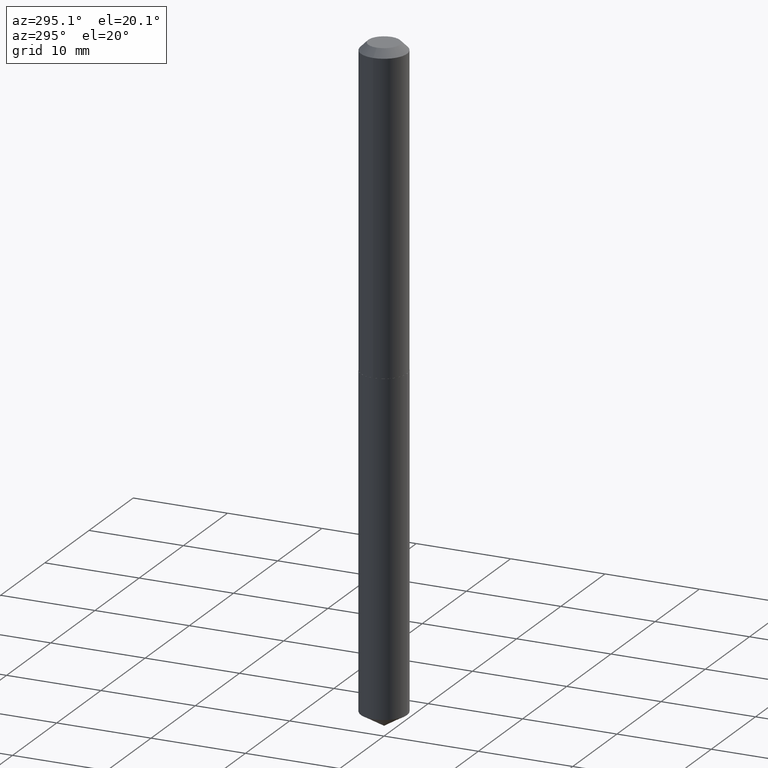
[diagram: clean part render]
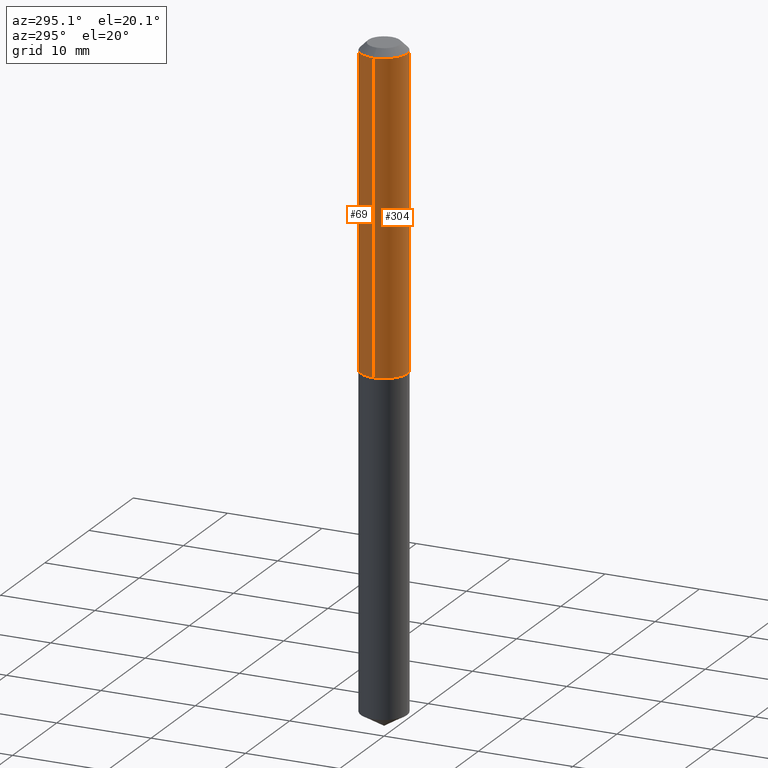
[diagram: same view with one multi-face feature highlighted, each face labeled with its STEP entity id]
A machine part, auxiliary view. The highlighted faces form ONE feature: a constant-radius fillet chain: 2 tangent blend faces with common blend radius 2.4575 mm. The faces share edges in the B-rep.
Their STEP definitions:
[1] entity #304 (Cylinder):
#17 = CARTESIAN_POINT ( 'NONE',  ( -0.09675000000000016920, -3.914322307747367897E-15, -1.318000000000000060 ) ) ;
#28 = DIRECTION ( 'NONE',  ( -2.445468806185136597E-29, 3.491481338843145583E-15, 1.000000000000000000 ) ) ;
#30 = ORIENTED_EDGE ( 'NONE', *, *, #70, .T. ) ;
#32 = VERTEX_POINT ( 'NONE', #39 ) ;
#34 = EDGE_LOOP ( 'NONE', ( #344, #335, #30, #274 ) ) ;
#36 = VECTOR ( 'NONE', #255, 39.37007874015748143 ) ;
#39 = CARTESIAN_POINT ( 'NONE',  ( -0.09675000000000000266, -1.667990501369159630E-15, -0.03125000000000019429 ) ) ;
#67 = CIRCLE ( 'NONE', #231, 0.09675000000000016920 ) ;
#70 = EDGE_CURVE ( 'NONE', #305, #179, #163, .T. ) ;
#87 = CARTESIAN_POINT ( 'NONE',  ( 0.09675000000000008593, -6.756016390661468288E-16, 4.717701030582572027E-30 ) ) ;
#105 = CARTESIAN_POINT ( 'NONE',  ( 0.000000000000000000, 0.000000000000000000, 0.000000000000000000 ) ) ;
#109 = CARTESIAN_POINT ( 'NONE',  ( 0.09675000000000016920, -5.277374043661413548E-15, -1.318000000000000060 ) ) ;
#135 = DIRECTION ( 'NONE',  ( -2.445468806185136597E-29, 3.491481338843145583E-15, 1.000000000000000000 ) ) ;
#146 = DIRECTION ( 'NONE',  ( 1.000000000000000000, -6.982962677686265922E-15, 0.000000000000000000 ) ) ;
#160 = VERTEX_POINT ( 'NONE', #17 ) ;
#163 = LINE ( 'NONE', #87, #36 ) ;
#170 = CIRCLE ( 'NONE', #336, 0.09675000000000000266 ) ;
#179 = VERTEX_POINT ( 'NONE', #239 ) ;
#184 = DIRECTION ( 'NONE',  ( -2.445468806185136597E-29, 3.491481338843145583E-15, 1.000000000000000000 ) ) ;
#195 = CARTESIAN_POINT ( 'NONE',  ( -0.09675000000000008593, 6.874500968478975404E-16, -4.759069699821625440E-30 ) ) ;
#204 = EDGE_CURVE ( 'NONE', #32, #179, #170, .T. ) ;
#222 = DIRECTION ( 'NONE',  ( -2.445468806185136877E-29, 3.491481338843145188E-15, 1.000000000000000000 ) ) ;
#230 = FACE_OUTER_BOUND ( 'NONE', #34, .T. ) ;
#231 = AXIS2_PLACEMENT_3D ( 'NONE', #366, #184, #334 ) ;
#239 = CARTESIAN_POINT ( 'NONE',  ( 0.09675000000000000266, -7.847104309049952392E-16, -0.03125000000000019429 ) ) ;
#250 = CYLINDRICAL_SURFACE ( 'NONE', #378, 0.09675000000000008593 ) ;
#255 = DIRECTION ( 'NONE',  ( -2.445468806185136877E-29, 3.491481338843145188E-15, 1.000000000000000000 ) ) ;
#256 = DIRECTION ( 'NONE',  ( 1.000000000000000000, -6.982962677686265922E-15, 4.876176775795935793E-29 ) ) ;
#274 = ORIENTED_EDGE ( 'NONE', *, *, #204, .F. ) ;
#291 = EDGE_CURVE ( 'NONE', #160, #32, #345, .T. ) ;
#304 = ADVANCED_FACE ( 'NONE', ( #230 ), #250, .T. ) ;
#305 = VERTEX_POINT ( 'NONE', #109 ) ;
#320 = VECTOR ( 'NONE', #222, 39.37007874015748143 ) ;
#334 = DIRECTION ( 'NONE',  ( 1.000000000000000000, -6.982962677686262766E-15, 0.000000000000000000 ) ) ;
#335 = ORIENTED_EDGE ( 'NONE', *, *, #364, .T. ) ;
#336 = AXIS2_PLACEMENT_3D ( 'NONE', #362, #28, #146 ) ;
#344 = ORIENTED_EDGE ( 'NONE', *, *, #291, .F. ) ;
#345 = LINE ( 'NONE', #195, #320 ) ;
#362 = CARTESIAN_POINT ( 'NONE',  ( 7.642090019328598283E-31, -1.091087918388489651E-16, -0.03125000000000019429 ) ) ;
#364 = EDGE_CURVE ( 'NONE', #160, #305, #67, .T. ) ;
#366 = CARTESIAN_POINT ( 'NONE',  ( 3.223127886552009797E-29, -4.601772404595266423E-15, -1.318000000000000060 ) ) ;
#378 = AXIS2_PLACEMENT_3D ( 'NONE', #105, #135, #256 ) ;
[2] entity #69 (Cylinder):
#13 = CIRCLE ( 'NONE', #106, 0.09675000000000016920 ) ;
#17 = CARTESIAN_POINT ( 'NONE',  ( -0.09675000000000016920, -3.914322307747367897E-15, -1.318000000000000060 ) ) ;
#32 = VERTEX_POINT ( 'NONE', #39 ) ;
#36 = VECTOR ( 'NONE', #255, 39.37007874015748143 ) ;
#39 = CARTESIAN_POINT ( 'NONE',  ( -0.09675000000000000266, -1.667990501369159630E-15, -0.03125000000000019429 ) ) ;
#41 = CARTESIAN_POINT ( 'NONE',  ( 0.000000000000000000, 0.000000000000000000, 0.000000000000000000 ) ) ;
#47 = CARTESIAN_POINT ( 'NONE',  ( 3.223127886552009797E-29, -4.601772404595266423E-15, -1.318000000000000060 ) ) ;
#69 = ADVANCED_FACE ( 'NONE', ( #257 ), #343, .T. ) ;
#70 = EDGE_CURVE ( 'NONE', #305, #179, #163, .T. ) ;
#82 = EDGE_CURVE ( 'NONE', #305, #160, #13, .T. ) ;
#87 = CARTESIAN_POINT ( 'NONE',  ( 0.09675000000000008593, -6.756016390661468288E-16, 4.717701030582572027E-30 ) ) ;
#92 = DIRECTION ( 'NONE',  ( 1.000000000000000000, -6.982962677686262766E-15, 0.000000000000000000 ) ) ;
#106 = AXIS2_PLACEMENT_3D ( 'NONE', #47, #384, #92 ) ;
#109 = CARTESIAN_POINT ( 'NONE',  ( 0.09675000000000016920, -5.277374043661413548E-15, -1.318000000000000060 ) ) ;
#110 = DIRECTION ( 'NONE',  ( 1.000000000000000000, -6.982962677686265922E-15, 4.876176775795935793E-29 ) ) ;
#139 = DIRECTION ( 'NONE',  ( -2.445468806185136597E-29, 3.491481338843145583E-15, 1.000000000000000000 ) ) ;
#142 = CARTESIAN_POINT ( 'NONE',  ( 7.642090019328598283E-31, -1.091087918388489651E-16, -0.03125000000000019429 ) ) ;
#150 = ORIENTED_EDGE ( 'NONE', *, *, #291, .T. ) ;
#160 = VERTEX_POINT ( 'NONE', #17 ) ;
#162 = EDGE_CURVE ( 'NONE', #179, #32, #177, .T. ) ;
#163 = LINE ( 'NONE', #87, #36 ) ;
#175 = ORIENTED_EDGE ( 'NONE', *, *, #70, .F. ) ;
#177 = CIRCLE ( 'NONE', #370, 0.09675000000000000266 ) ;
#179 = VERTEX_POINT ( 'NONE', #239 ) ;
#195 = CARTESIAN_POINT ( 'NONE',  ( -0.09675000000000008593, 6.874500968478975404E-16, -4.759069699821625440E-30 ) ) ;
#212 = AXIS2_PLACEMENT_3D ( 'NONE', #41, #318, #110 ) ;
#222 = DIRECTION ( 'NONE',  ( -2.445468806185136877E-29, 3.491481338843145188E-15, 1.000000000000000000 ) ) ;
#239 = CARTESIAN_POINT ( 'NONE',  ( 0.09675000000000000266, -7.847104309049952392E-16, -0.03125000000000019429 ) ) ;
#255 = DIRECTION ( 'NONE',  ( -2.445468806185136877E-29, 3.491481338843145188E-15, 1.000000000000000000 ) ) ;
#257 = FACE_OUTER_BOUND ( 'NONE', #327, .T. ) ;
#260 = DIRECTION ( 'NONE',  ( 1.000000000000000000, -6.982962677686265922E-15, 0.000000000000000000 ) ) ;
#291 = EDGE_CURVE ( 'NONE', #160, #32, #345, .T. ) ;
#305 = VERTEX_POINT ( 'NONE', #109 ) ;
#318 = DIRECTION ( 'NONE',  ( -2.445468806185136597E-29, 3.491481338843145583E-15, 1.000000000000000000 ) ) ;
#320 = VECTOR ( 'NONE', #222, 39.37007874015748143 ) ;
#327 = EDGE_LOOP ( 'NONE', ( #373, #150, #380, #175 ) ) ;
#343 = CYLINDRICAL_SURFACE ( 'NONE', #212, 0.09675000000000008593 ) ;
#345 = LINE ( 'NONE', #195, #320 ) ;
#370 = AXIS2_PLACEMENT_3D ( 'NONE', #142, #139, #260 ) ;
#373 = ORIENTED_EDGE ( 'NONE', *, *, #82, .T. ) ;
#380 = ORIENTED_EDGE ( 'NONE', *, *, #162, .F. ) ;
#384 = DIRECTION ( 'NONE',  ( -2.445468806185136597E-29, 3.491481338843145583E-15, 1.000000000000000000 ) ) ;